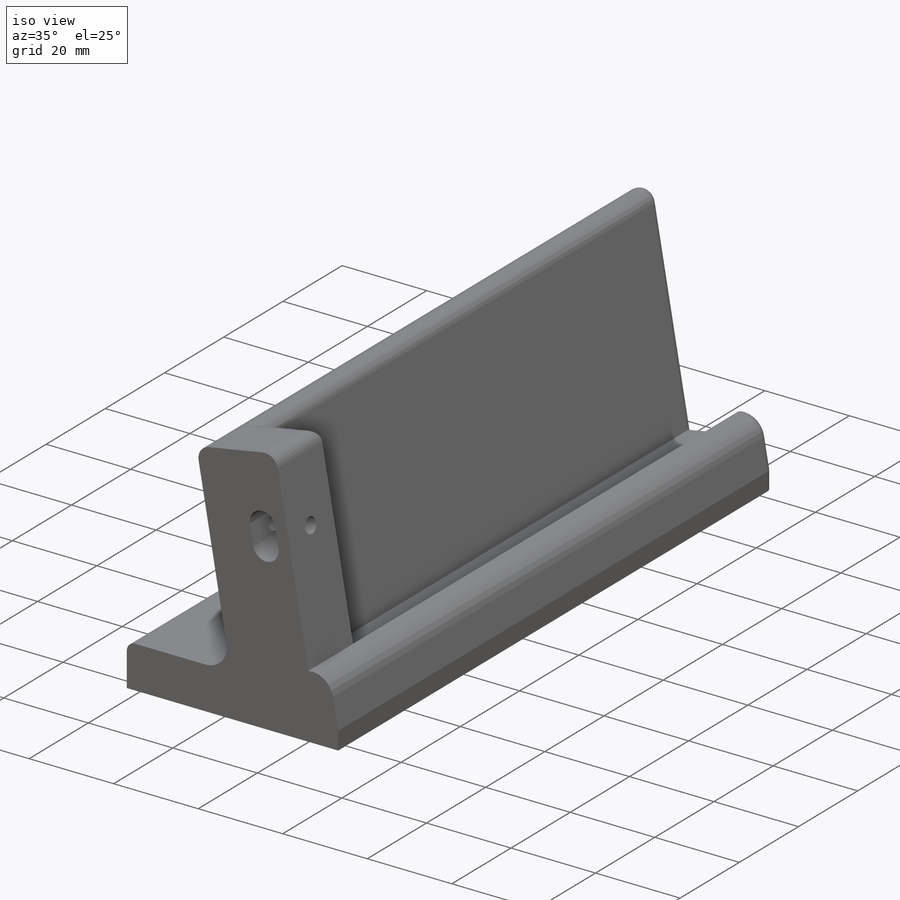
[diagram: iso view]
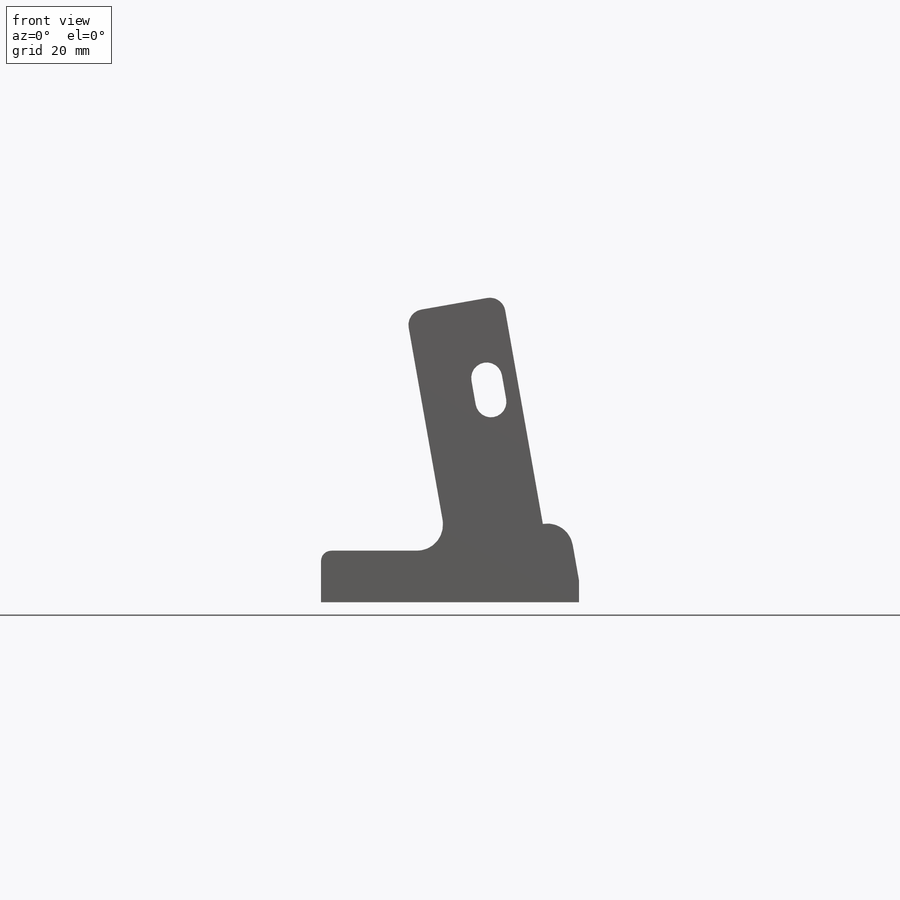
[diagram: front view]
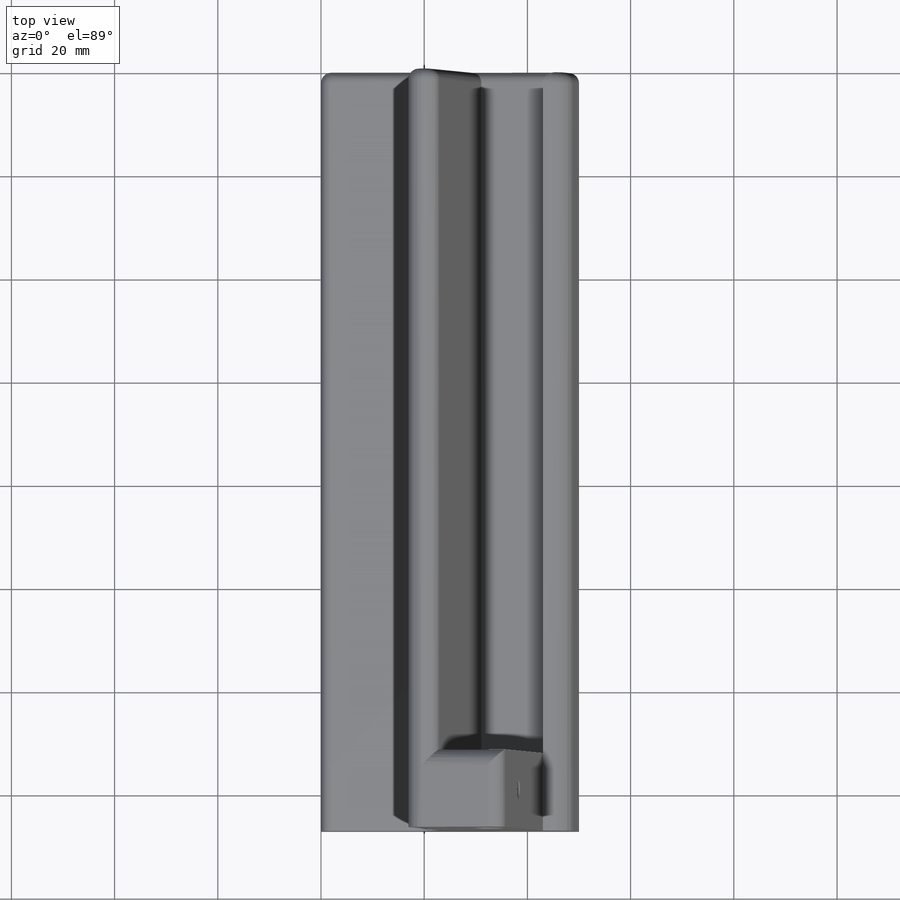
[diagram: top view]
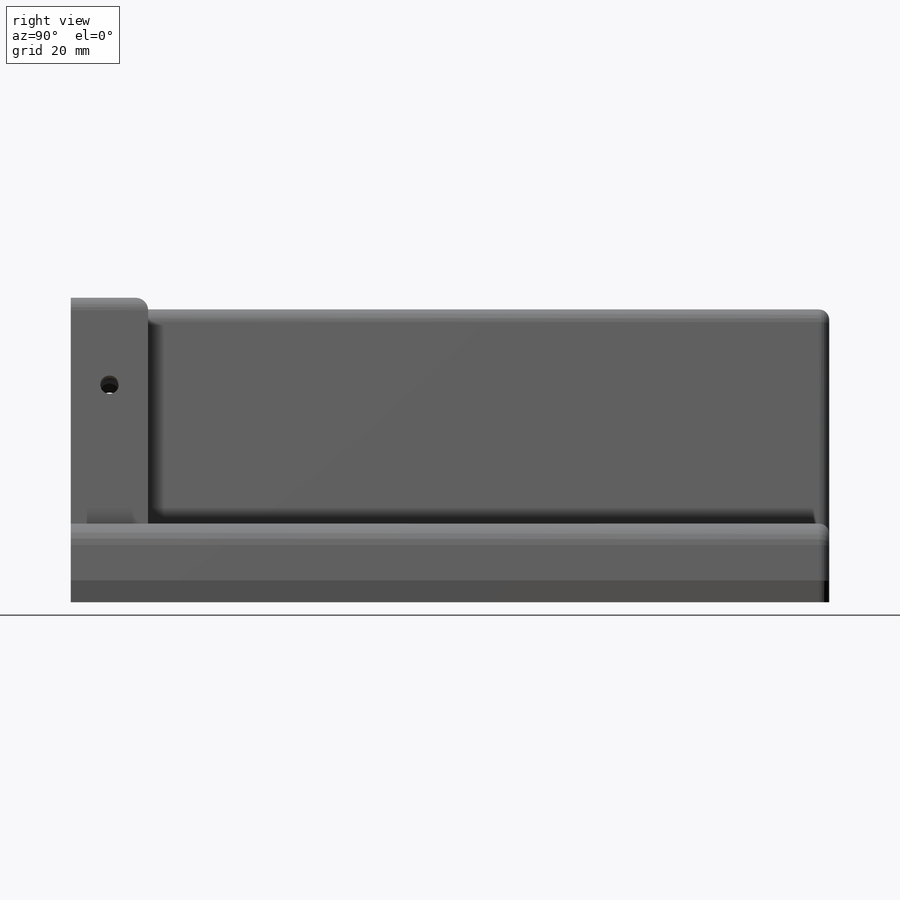
[diagram: right view]
SOLIDWORKS PART (.sldprt)
format: sldprt  version: not decoded by parser v0  size: 309,760 bytes
history: native  units: mm
features: fillet x5, sketch x4, extrude x2, cut_extrude x2, material x1 (+13 scaffold rows collapsed)
feature tree (27):
  scaffold x13  (default folders/planes/origin — collapsed)
  material  "Material <not specified>"
  sketch  "Sketch1"  dims[c1.D1=0.0deg c2.D1=13.0mm c2.D2=5.0mm c2.D3=5.0mm c2.D4=50.0mm c2.D5=6.0mm c2.D6=50.0mm c2.D7=8.0mm c2.D8=10.0mm c2.D9=~2.158944mm c3.D9=170.0deg c3.D10=12.0mm]
  extrude  "Boss-Extrude2"  Depth=132mm
  sketch  "Sketch2"  dims[D1=~49.240388mm]
  extrude  "Boss-Extrude3"  Depth=15mm
  sketch  "Sketch3"  dims[c1.D1=3.0mm c1.D2=3.0mm c2.D1=~3.872562mm c2.D2=4.5mm c2.D3=~4.250121mm c3.D3=~0.537678deg c3.D1=4.7mm c4.D3=10.2mm c4.D4=30.05mm c4.D5=15.25mm]
  cut_extrude  "Cut-Extrude1"  Depth=15mm
  sketch  "Sketch6"  dims[D1=3.6mm D2=17.6mm]
  cut_extrude  "Cut-Extrude2"  [1 undecoded]
  fillet  "Fillet2"  Radius=3mm
  fillet  "Fillet4"  Radius=5mm
  fillet  "Fillet5"  Radius=2mm
  fillet  "Fillet6"  Radius=2mm
  fillet  "Fillet7"  Radius=5mm
decode coverage: 12 of 13 modeling features carry decoded parameters
note: ~ marks probable driven/reference dimensions
note: 1 parameter value undecoded
note: suppression state not decoded; provenance and decode notes live in map.json
